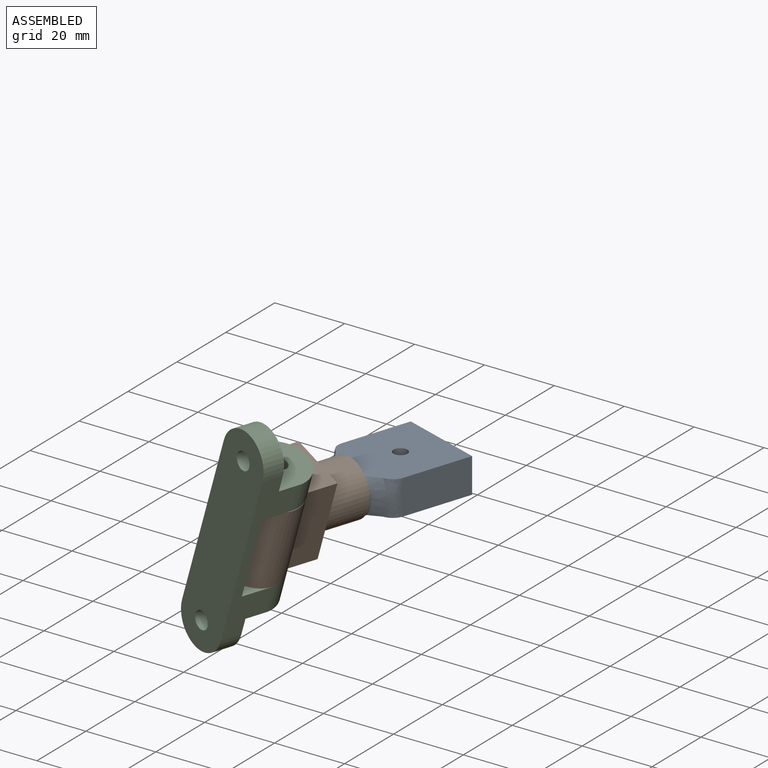
[diagram: assembled view]
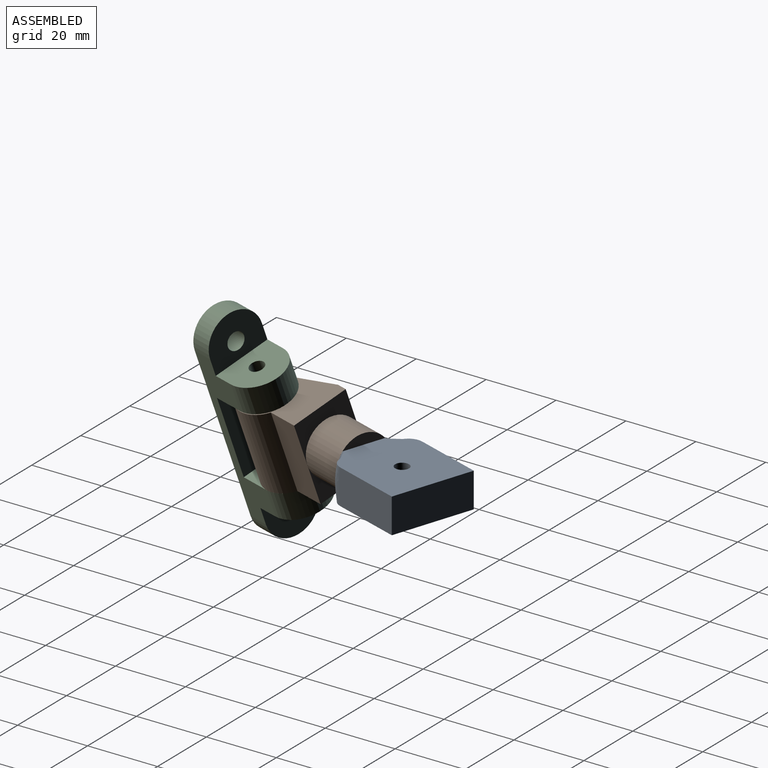
[diagram: assembled view, second angle]
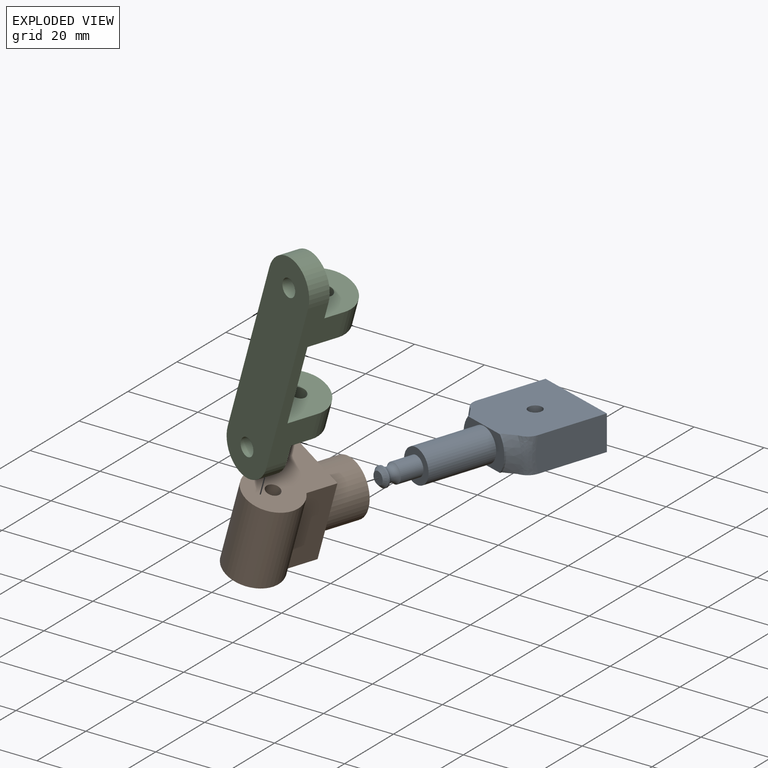
[diagram: exploded view]
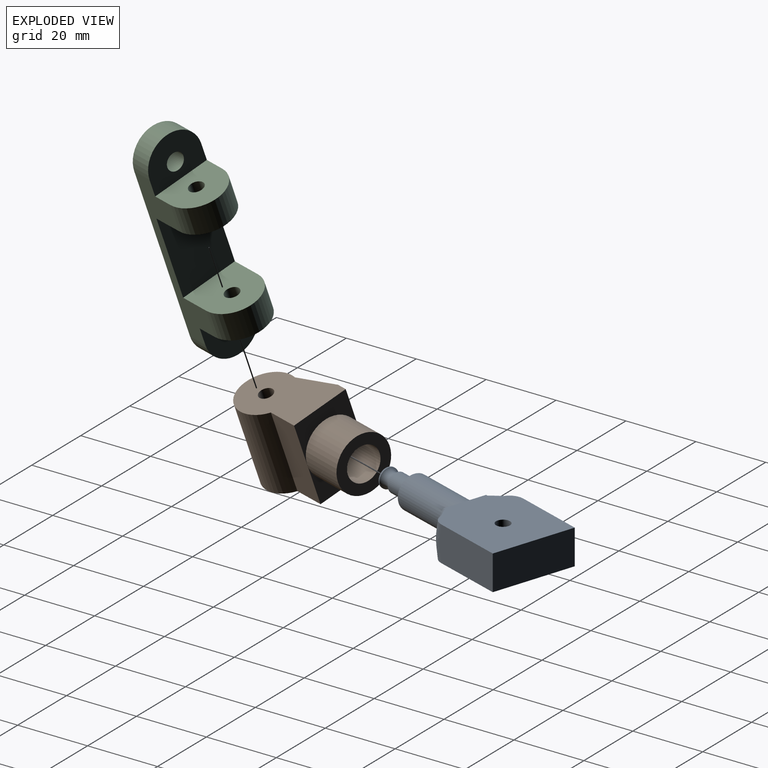
[diagram: exploded view, second angle]
ASSEMBLY  parts=3 mates=2
PART A: 20 faces, bbox 58.3x24.3x13.4 mm
  f0: cylinder r=2.8mm len=6.6mm, axis (1,0,0), area 116.1mm2, adj f10,f16
  f1: plane 20.88x10mm, normal (0,-1,0), area 205.7mm2, adj f2,f4,f5,f15
  f2: plane 24x10mm, normal (1,0,0), area 240mm2, adj f1,f3,f4,f5
  f3: plane 20.88x10mm, normal (0,1,0), area 205.7mm2, adj f2,f4,f5,f14
  f4: plane 27.25x24.25mm, normal (0,0,1), area 602.8mm2, adj f1,f2,f3,f6,f7,f8,f9,f12
  f5: plane 27.25x24.25mm, normal (0,0,-1), area 602.8mm2, adj f1,f2,f3,f6,f7,f8,f9,f12
  f6: cylinder r=2mm len=10mm, axis (0,0,1), area 125.7mm2, adj f4,f5
  f7: cylinder r=8mm len=10mm, axis (1,0,0), area 5.4mm2, adj f4,f5,f9,f12
  f8: cylinder r=8mm len=10mm, axis (1,0,0), area 5.4mm2, adj f4,f5,f9,f13
  f9: plane 16x10mm, normal (-1,0,0), area 76.5mm2, adj f4,f5,f7,f8,f11
  f10: plane 9.6x9.6mm, normal (-1,0,0), area 47.8mm2, adj f0,f11
  f11: cylinder r=4.8mm len=19.8mm, axis (1,0,0), area 597.2mm2, adj f9,f10
  f12: cone r=8mm half-angle=45deg, axis (1,0,0), area 38mm2, adj f4,f5,f7,f15
  f13: cone r=8mm half-angle=45deg, axis (1,0,0), area 38mm2, adj f4,f5,f8,f14
  f14: bspline ~11.13x3.86mm, area 41.6mm2, adj f3,f4,f5,f13
  f15: bspline ~11.13x3.86mm, area 41.6mm2, adj f1,f4,f5,f12
  f16: torus R=4mm, axis (1,0,0), area 53mm2, adj f0,f19
  f17: plane 3.6x3.6mm, normal (-1,0,0), area 10.2mm2, adj f18
  f18: cone r=1.8mm half-angle=45deg, axis (1,0,0), area 20.4mm2, adj f17,f19
  f19: cylinder r=2.8mm len=5.6mm, axis (1,0,0), area 7mm2, adj f16,f18
PART B: 18 faces, bbox 23.8x36x20 mm
  f0: cylinder r=8mm len=16mm, axis (0,1,0), area 603.2mm2, adj f1,f2,f3
  f1: plane 16x16mm, normal (0,1,0), area 125.6mm2, adj f0,f12
  f2: plane 16x11.9mm, normal (0,1,0), area 89.9mm2, adj f0,f4,f5,f6
  f3: plane 16x11.9mm, normal (0,1,0), area 89.9mm2, adj f0,f4,f6,f7
  f4: plane 23.8x3mm, normal (0,0,-1), area 71.4mm2, adj f2,f3,f5,f7,f8
  f5: plane 24x20mm, normal (1,0,0), area 334.2mm2, adj f2,f4,f6,f8,f9,f10
  f6: plane 23.8x9.07mm, normal (0,0,1), area 215.9mm2, adj f2,f3,f5,f7,f9
  f7: plane 24x20mm, normal (-1,0,0), area 334.2mm2, adj f3,f4,f6,f8,f9,f10
  f8: plane 23.8x11.63mm, normal (0,-0.33,-0.94), area 293.7mm2, adj f4,f5,f7,f9
  f9: cylinder r=8mm len=23.8mm, axis (1,0,0), area 830.2mm2, adj f5,f6,f7,f8
  f10: cylinder r=2mm len=23.8mm, axis (1,0,0), area 284.2mm2, adj f5,f7,f15
  f11: cylinder r=3.9mm len=7.8mm, axis (0,1,0), area 2.5mm2, adj f13,f14
  f12: cylinder r=4.9mm len=20mm, axis (0,1,0), area 615.8mm2, adj f1,f13
  f13: plane 9.8x9.8mm, normal (0,1,0), area 27.6mm2, adj f11,f12
  f14: plane 7.8x7.8mm, normal (0,1,0), area 19.5mm2, adj f11,f15
  f15: cylinder r=3mm len=10.5mm, axis (0,1,0), area 183.7mm2, adj f10,f14,f17
  f16: plane 4x4mm, normal (0,1,0), area 12.6mm2, adj f17
  f17: cone r=2mm half-angle=45deg, axis (0,1,0), area 22.2mm2, adj f15,f16
PART C: 18 faces, bbox 66x16x20 mm
  f0: plane 16x14mm, normal (1,0,0), area 183.3mm2, adj f2,f3,f9,f11,f13
  f1: plane 16x14mm, normal (-1,0,0), area 183.3mm2, adj f2,f3,f8,f10,f12
  f2: plane 50x12mm, normal (0,-1,0), area 324mm2, adj f0,f1,f4,f5,f6,f7,f8,f9
  f3: plane 50x12mm, normal (0,1,0), area 324mm2, adj f0,f1,f4,f5,f6,f7,f8,f9
  f4: plane 66x16mm, normal (0,0,1), area 961.8mm2, adj f2,f3,f14,f15,f16,f17
  f5: plane 17x16mm, normal (-1,0,0), area 231.3mm2, adj f2,f3,f7,f9,f11
  f6: plane 17x16mm, normal (1,0,0), area 231.3mm2, adj f2,f3,f7,f8,f10
  f7: plane 24x16mm, normal (0,0,-1), area 384mm2, adj f2,f3,f5,f6
  f8: cylinder r=8mm len=16mm, axis (-1,0,0), area 201.1mm2, adj f1,f2,f3,f6
  f9: cylinder r=8mm len=16mm, axis (1,0,0), area 201.1mm2, adj f0,f2,f3,f5
  f10: cylinder r=2.05mm len=8mm, axis (-1,0,0), area 103mm2, adj f1,f6
  f11: cylinder r=2.05mm len=8mm, axis (-1,0,0), area 103mm2, adj f0,f5
  f12: plane 16x13mm, normal (0,0,-1), area 160.9mm2, adj f1,f2,f3,f14,f17
  f13: plane 16x13mm, normal (0,0,-1), area 160.9mm2, adj f0,f2,f3,f15,f16
  f14: cylinder r=8mm len=16mm, axis (0,0,1), area 150.8mm2, adj f2,f3,f4,f12
  f15: cylinder r=8mm len=16mm, axis (0,0,-1), area 150.8mm2, adj f2,f3,f4,f13
  f16: cylinder r=2.5mm len=6mm, axis (0,0,1), area 94.2mm2, adj f4,f13
  f17: cylinder r=2.5mm len=6mm, axis (0,0,1), area 94.2mm2, adj f4,f12
PLACE A rot(axis=(0,0,1),71.8deg) t=(0,0,0)mm
PLACE B rot(axis=(0.16,0.98,-0.11),110.1deg) t=(-4.65,-14.15,5)mm
PLACE C rot(axis=(0.52,0.53,-0.67),143.4deg) t=(-7.31,-34.44,3.79)mm
MATE revolute B.f9 <-> C.f9  axis (-0.31,0.1,-0.95) through (-13.53,-40.82,-7.55)mm
MATE revolute A.f7 <-> B.f12  axis (-0.31,-0.95,0) through (-4.69,-14.25,5)mm
